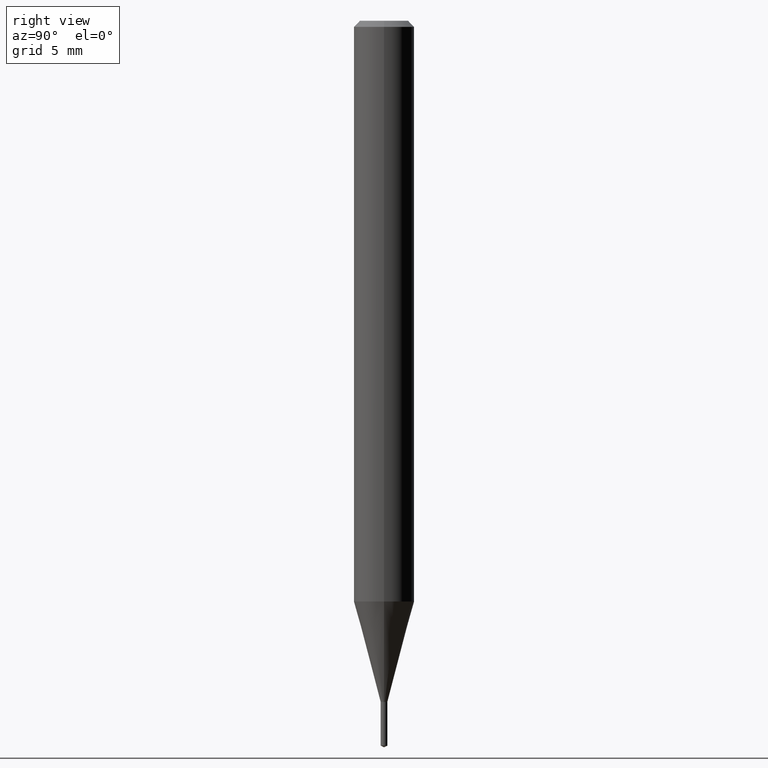
[diagram: clean part render]
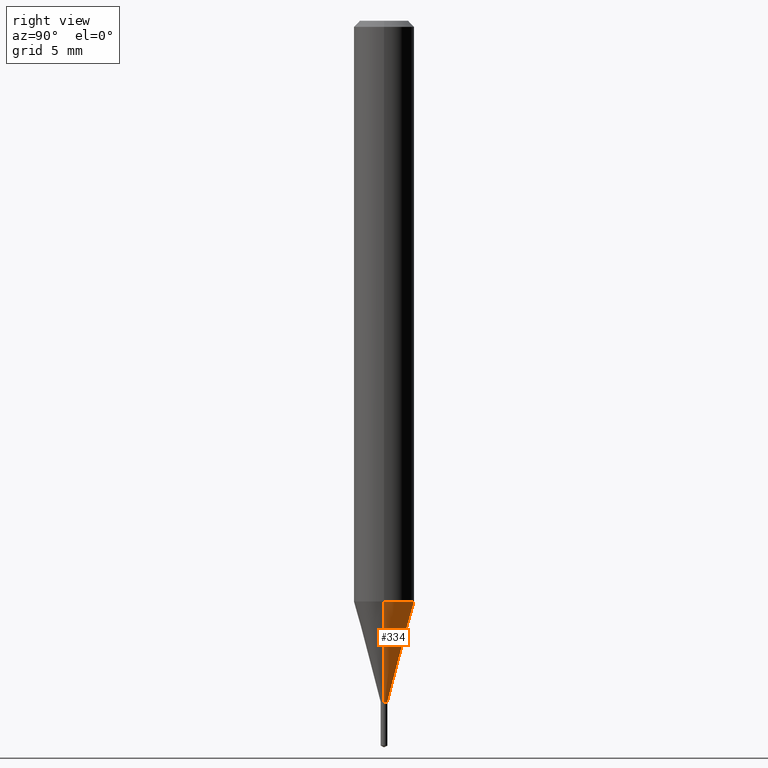
[diagram: same view with one face highlighted and labeled with its STEP entity id]
A machine part, right view. The second image highlights one B-rep face of the part: STEP entity #334.
In plain terms, the highlighted conical surface has half-angle 15 deg.
Its self-contained STEP definition (entity closure, byte-faithful):
#5 = EDGE_LOOP ( 'NONE', ( #230, #459, #77, #347 ) ) ;
#7 = CARTESIAN_POINT ( 'NONE',  ( 0.06250000000000013878, -4.623063370858769770E-15, -1.199097975099176372 ) ) ;
#9 = EDGE_CURVE ( 'NONE', #33, #416, #337, .T. ) ;
#15 = CARTESIAN_POINT ( 'NONE',  ( 0.006899999999999999883, -4.959300093692804553E-15, -1.406600000000000295 ) ) ;
#22 = DIRECTION ( 'NONE',  ( 1.000000000000000000, -6.982962677686270655E-15, 0.000000000000000000 ) ) ;
#33 = VERTEX_POINT ( 'NONE', #15 ) ;
#48 = DIRECTION ( 'NONE',  ( -2.445468806185136597E-29, 3.491481338843145583E-15, 1.000000000000000000 ) ) ;
#74 = EDGE_CURVE ( 'NONE', #243, #350, #227, .T. ) ;
#77 = ORIENTED_EDGE ( 'NONE', *, *, #74, .F. ) ;
#93 = DIRECTION ( 'NONE',  ( 1.000000000000000000, -6.982962677686234367E-15, 0.000000000000000000 ) ) ;
#125 = LINE ( 'NONE', #208, #193 ) ;
#127 = DIRECTION ( 'NONE',  ( -2.445468806185136597E-29, 3.491481338843145583E-15, 1.000000000000000000 ) ) ;
#132 = VECTOR ( 'NONE', #396, 39.37007874015748854 ) ;
#146 = CARTESIAN_POINT ( 'NONE',  ( -0.006899999999999999883, -4.631477860018732749E-15, -1.406600000000000295 ) ) ;
#193 = VECTOR ( 'NONE', #387, 39.37007874015748854 ) ;
#208 = CARTESIAN_POINT ( 'NONE',  ( -0.006899999999999999883, -4.862090202449323231E-15, -1.406600000000000295 ) ) ;
#222 = CARTESIAN_POINT ( 'NONE',  ( 0.006899999999999999883, -4.959300093692804553E-15, -1.406600000000000295 ) ) ;
#227 = CIRCLE ( 'NONE', #338, 0.06250000000000013878 ) ;
#230 = ORIENTED_EDGE ( 'NONE', *, *, #9, .T. ) ;
#243 = VERTEX_POINT ( 'NONE', #7 ) ;
#256 = LINE ( 'NONE', #222, #132 ) ;
#264 = CARTESIAN_POINT ( 'NONE',  ( -0.06250000000000013878, -3.742538993653314695E-15, -1.199097975099176372 ) ) ;
#303 = AXIS2_PLACEMENT_3D ( 'NONE', #405, #48, #434 ) ;
#306 = EDGE_CURVE ( 'NONE', #33, #243, #256, .T. ) ;
#333 = CARTESIAN_POINT ( 'NONE',  ( 2.932356693664797895E-29, -4.186628203503377311E-15, -1.199097975099176372 ) ) ;
#334 = ADVANCED_FACE ( 'NONE', ( #389 ), #381, .T. ) ;
#337 = CIRCLE ( 'NONE', #303, 0.006899999999999999883 ) ;
#338 = AXIS2_PLACEMENT_3D ( 'NONE', #333, #467, #22 ) ;
#347 = ORIENTED_EDGE ( 'NONE', *, *, #306, .F. ) ;
#350 = VERTEX_POINT ( 'NONE', #264 ) ;
#381 = CONICAL_SURFACE ( 'NONE', #407, 0.006899999999999999883, 0.2617993877991570684 ) ;
#387 = DIRECTION ( 'NONE',  ( -0.2588190451025281225, 5.211531920934590485E-15, 0.9659258262890662028 ) ) ;
#389 = FACE_OUTER_BOUND ( 'NONE', #5, .T. ) ;
#396 = DIRECTION ( 'NONE',  ( 0.2588190451025281225, 1.565188264969568128E-15, 0.9659258262890662028 ) ) ;
#405 = CARTESIAN_POINT ( 'NONE',  ( 3.439796422780014085E-29, -4.911117651216769477E-15, -1.406600000000000295 ) ) ;
#407 = AXIS2_PLACEMENT_3D ( 'NONE', #466, #127, #93 ) ;
#416 = VERTEX_POINT ( 'NONE', #146 ) ;
#434 = DIRECTION ( 'NONE',  ( 1.000000000000000000, -6.982962677686234367E-15, 0.000000000000000000 ) ) ;
#459 = ORIENTED_EDGE ( 'NONE', *, *, #476, .T. ) ;
#466 = CARTESIAN_POINT ( 'NONE',  ( 3.439796422780014085E-29, -4.911117651216769477E-15, -1.406600000000000295 ) ) ;
#467 = DIRECTION ( 'NONE',  ( -2.445468806185136597E-29, 3.491481338843145583E-15, 1.000000000000000000 ) ) ;
#476 = EDGE_CURVE ( 'NONE', #416, #350, #125, .T. ) ;